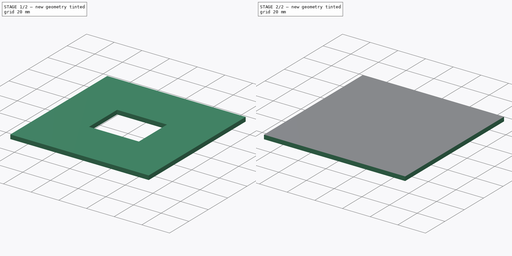
[diagram: build sequence overview — one tinted view per stage of 2, left to right]
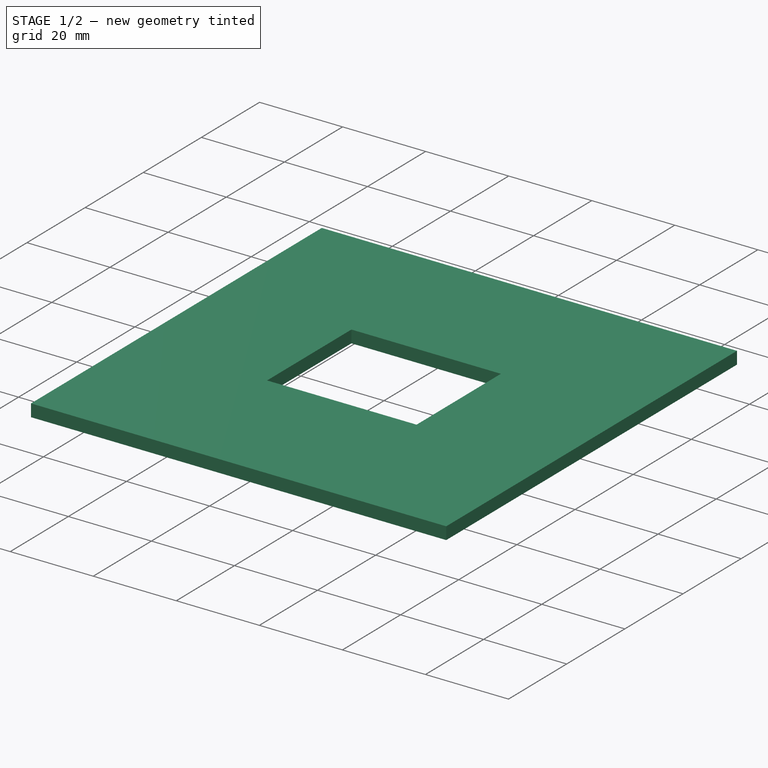
[diagram: stage 1 of 2 — iso view after this stage's code; geometry added in this stage tinted green]
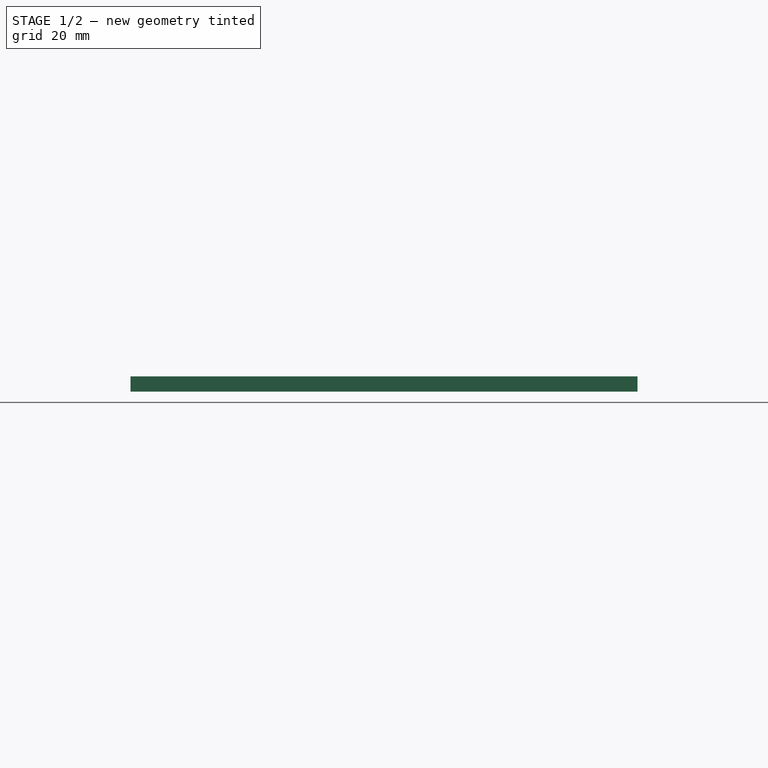
[diagram: stage 1 of 2 — front view after this stage's code; geometry added in this stage tinted green]
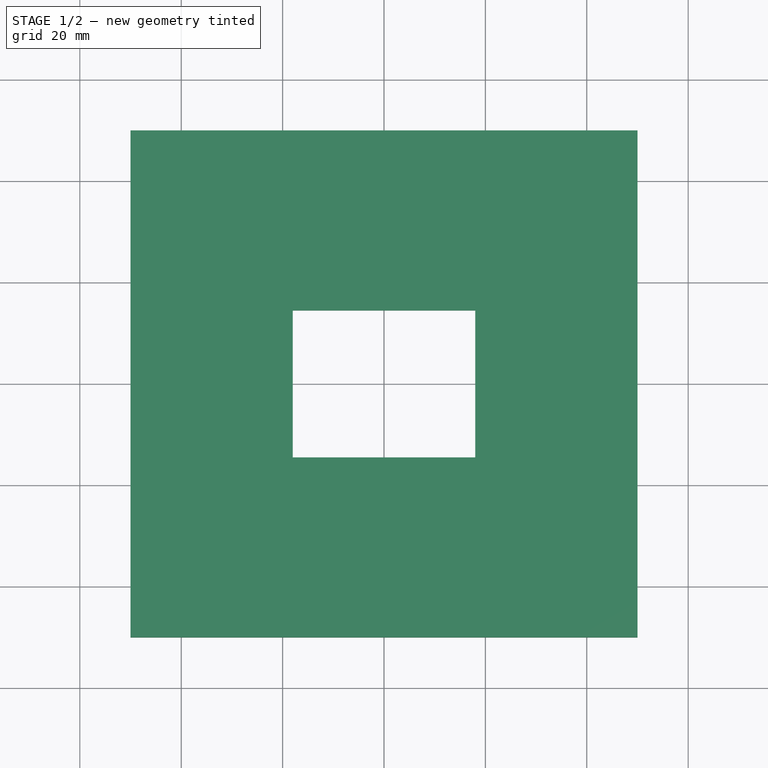
[diagram: stage 1 of 2 — top view after this stage's code; geometry added in this stage tinted green]
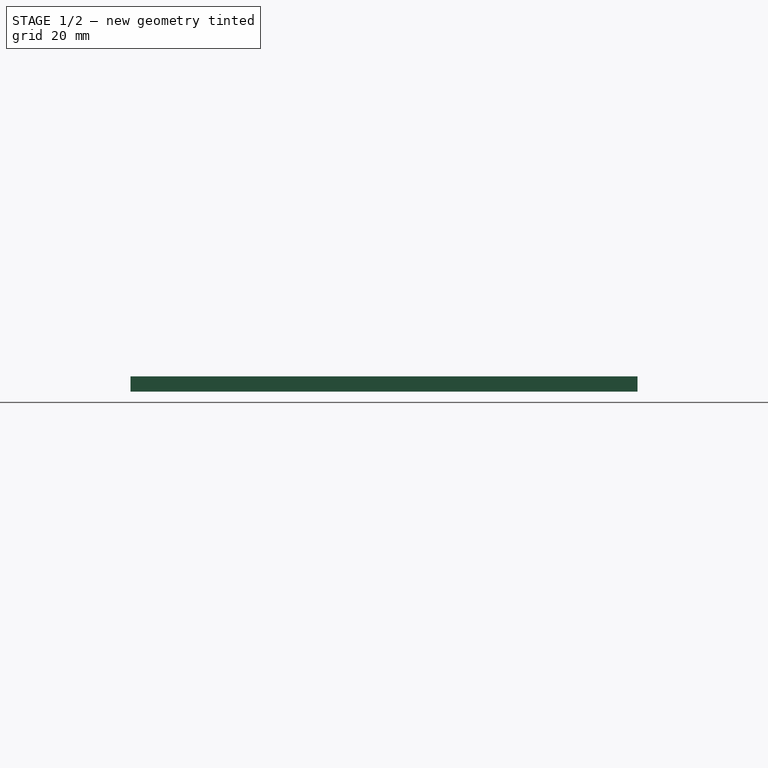
[diagram: stage 1 of 2 — right view after this stage's code; geometry added in this stage tinted green]
FCSTD DOCUMENT  (FreeCAD 0.18.3R)
Label: agujeroParaPantalla
License: All rights reserved
LicenseURL: http://en.wikipedia.org/wiki/All_rights_reserved
objects: Path::FeaturePython×3, Sketcher::SketchObject×2, Part::FeaturePython×2, PartDesign::Pad×1, PartDesign::Pocket×1, PartDesign::Body×1, App::FeaturePython×1, App::DocumentObjectGroup×1, Path::FeatureCompoundPython×1
note: 10 computed .brp shape members not serialized (recipe doc carries the construction recipe); baked Part::Feature solids carry a one-line shape summary decoded from their .brp

FEATURE [Sketcher::SketchObject] Sketch
  MapMode = 5
  Support = -> [XY_Plane]
  sketch-geometry (4):
    g0: LineSegment StartX=-50 StartY=50 StartZ=0 EndX=50 EndY=50 EndZ=0
    g1: LineSegment StartX=50 StartY=50 StartZ=0 EndX=50 EndY=-50 EndZ=0
    g2: LineSegment StartX=50 StartY=-50 StartZ=0 EndX=-50 EndY=-50 EndZ=0
    g3: LineSegment StartX=-50 StartY=-50 StartZ=0 EndX=-50 EndY=50 EndZ=0
  constraints (11):
    c: Coincident(g0,g1)
    c: Coincident(g1,g2)
    c: Coincident(g2,g3)
    c: Coincident(g3,g0)
    c: Horizontal(g0)
    c: Horizontal(g2)
    c: Vertical(g1)
    c: Vertical(g3)
    c: DistanceY(g3,g3) = 100
    c: DistanceX(g0,g0) = 100
    c: Symmetric(g1,g0,g-1)
FEATURE [PartDesign::Pad] Pad
  Length = 3
  Length2 = 100
  Profile = -> Sketch
  Refine = true
  Reversed = true
  Type = 0
FEATURE [Sketcher::SketchObject] Sketch001
  MapMode = 5
  Support = -> [Pad]
  sketch-geometry (4):
    g0: LineSegment StartX=-18 StartY=14.5 StartZ=0 EndX=18 EndY=14.5 EndZ=0
    g1: LineSegment StartX=18 StartY=14.5 StartZ=0 EndX=18 EndY=-14.5 EndZ=0
    g2: LineSegment StartX=18 StartY=-14.5 StartZ=0 EndX=-18 EndY=-14.5 EndZ=0
    g3: LineSegment StartX=-18 StartY=-14.5 StartZ=0 EndX=-18 EndY=14.5 EndZ=0
  constraints (11):
    c: Coincident(g0,g1)
    c: Coincident(g1,g2)
    c: Coincident(g2,g3)
    c: Coincident(g3,g0)
    c: Horizontal(g0)
    c: Horizontal(g2)
    c: Vertical(g1)
    c: Vertical(g3)
    c: Symmetric(g0,g1,g-1)
    c: DistanceY(g1,g1) = 29
    c: DistanceX(g0,g0) = 36
FEATURE [PartDesign::Pocket] Pocket
  BaseFeature = -> Pad
  Length = 5
  Length2 = 100
  Profile = -> Sketch001
  Refine = true
  Type = 1
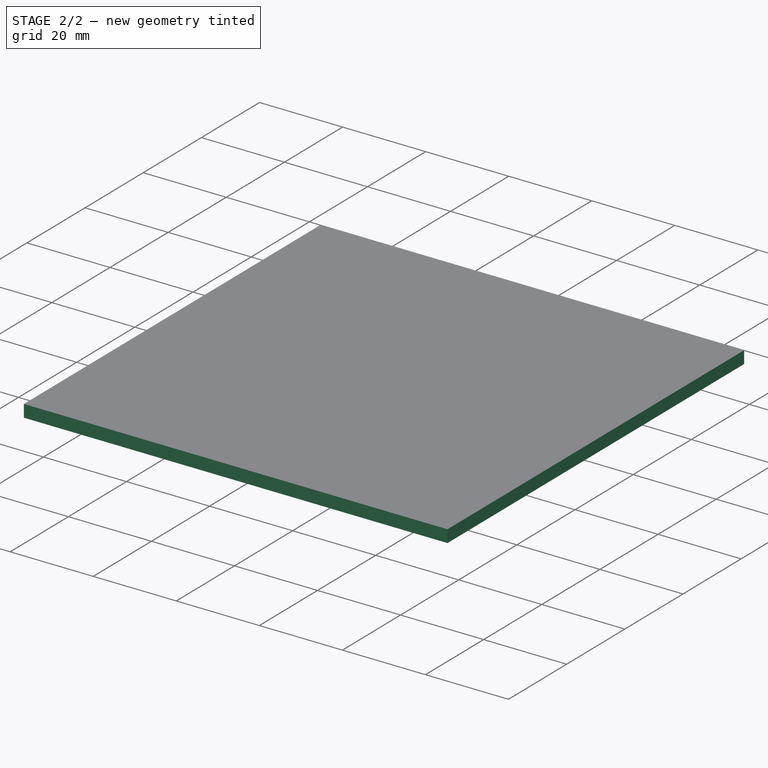
[diagram: stage 2 of 2 — iso view after this stage's code; geometry added in this stage tinted green]
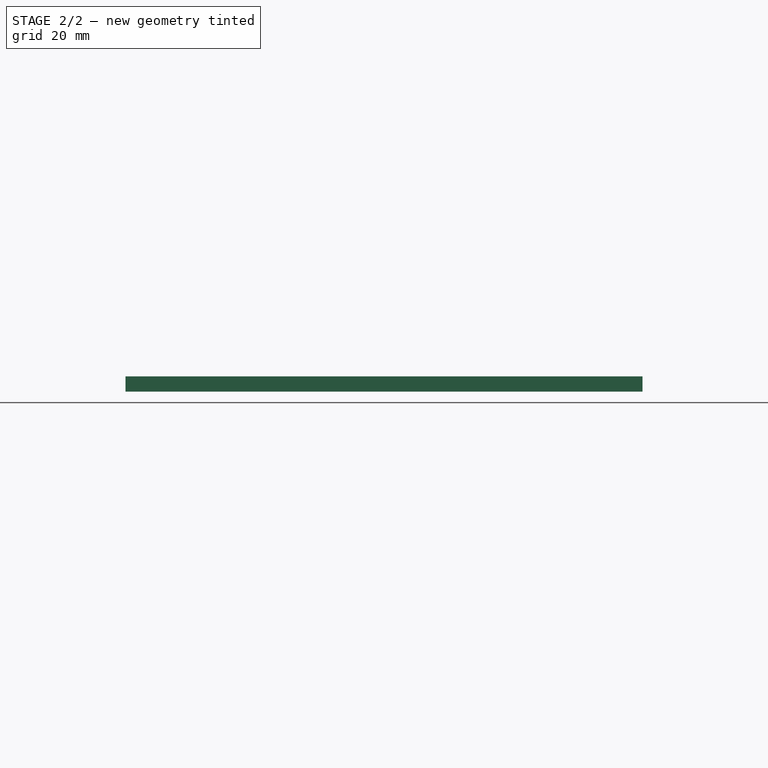
[diagram: stage 2 of 2 — front view after this stage's code; geometry added in this stage tinted green]
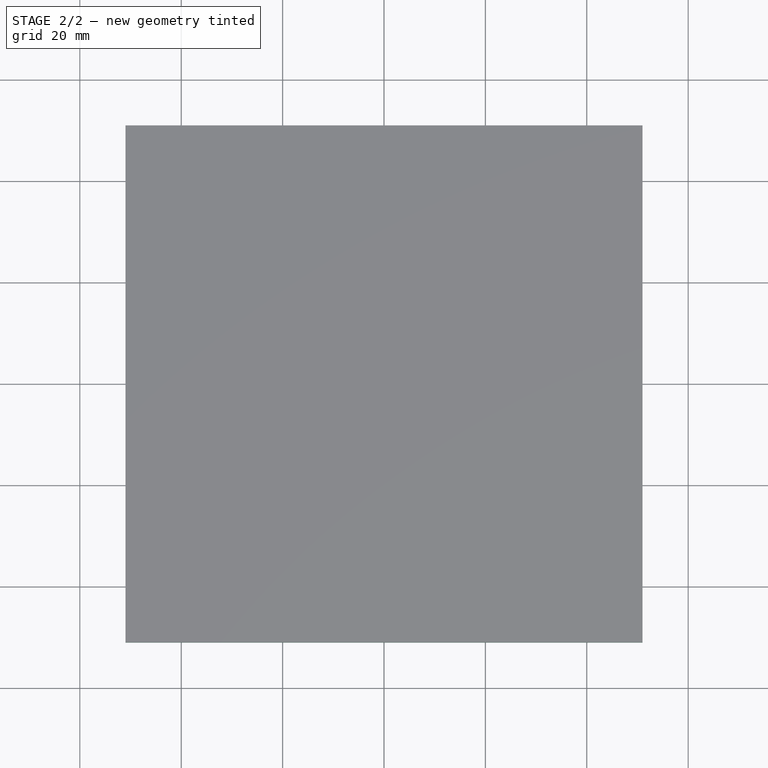
[diagram: stage 2 of 2 — top view after this stage's code; geometry added in this stage tinted green]
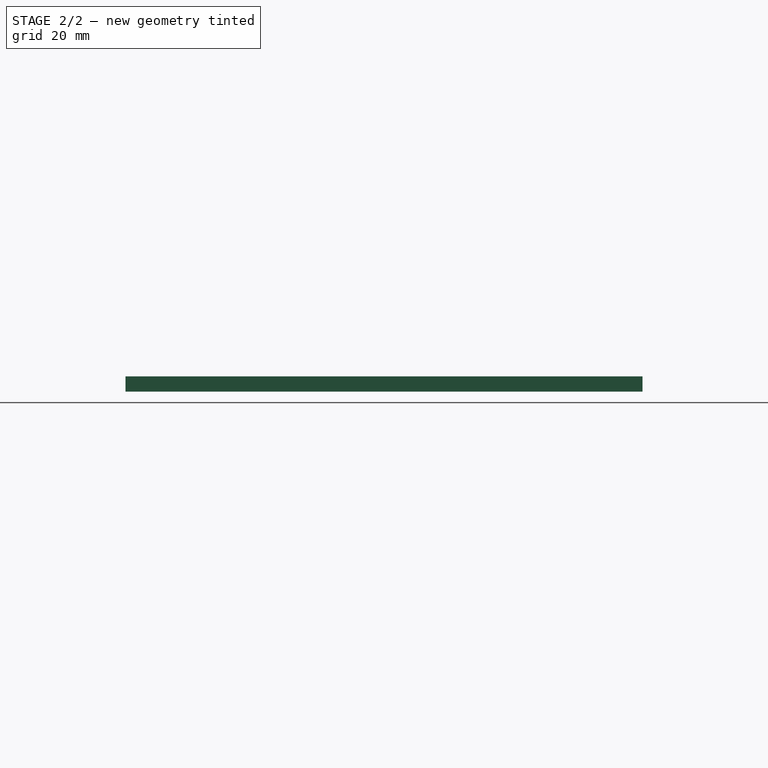
[diagram: stage 2 of 2 — right view after this stage's code; geometry added in this stage tinted green]
FEATURE [PartDesign::Body] Body
  Group = -> [Sketch,Pad,Sketch001,Pocket]
  Origin = -> Origin
  Tip = -> Pocket
FEATURE [App::FeaturePython] SetupSheet  # Path/CAM operation (typed FeaturePython)
  ClearanceHeightExpression = OpStockZMax+SetupSheet.ClearanceHeightOffset
  ClearanceHeightOffset = 3
  FinalDepthExpression = -3
  HorizRapid = 4
  SafeHeightExpression = OpStockZMax+SetupSheet.SafeHeightOffset
  SafeHeightOffset = 3
  StartDepthExpression = 0
  StepDownExpression = 1
  VertRapid = 2
FEATURE [Part::FeaturePython] Clone  label="Model-Body"  # Draft clone (typed FeaturePython)
  AttacherType = Attacher::AttachEngine3D
  Fuse = false
  Objects = -> [Body]
  PathResource = Model
  Scale = (1,1,1)
FEATURE [App::DocumentObjectGroup] Model
  Group = -> [Clone]
FEATURE [Path::FeaturePython] Default_Tool  label="Vcarved"  # Path/CAM operation (typed FeaturePython)
  HorizFeed = 3
  HorizRapid = 4
  SpindleDir = 0
  SpindleSpeed = 0
  ToolNumber = 1
  VertFeed = 0.5
  VertRapid = 2
  expr: HorizRapid = SetupSheet.HorizRapid
  expr: VertRapid = SetupSheet.VertRapid
FEATURE [Part::FeaturePython] Stock  # WARN: FeaturePython — macro-defined, semantics opaque (R4)
  Base = -> Model
  ExtXneg = 1
  ExtXpos = 1
  ExtYneg = 1
  ExtYpos = 1
  ExtZneg = 0
  ExtZpos = 0
  Placement = pos=(-50,-50,-3) rot=(0,0,1;0rad)
  StockType = FromBase
FEATURE [Path::FeaturePython] Profile_Edges  # Path/CAM operation (typed FeaturePython)
  Active = true
  AreaParams:
    Tolerance = 1e-07
    FitArcs = True
    Simplify = False
    CleanDistance = 0.0
    Accuracy = 0.01
    Unit = 1.0
    MinArcPoints = 4
    MaxArcPoints = 100
    ClipperScale = 10000000.0
    Fill = 0
    Coplanar = 0
    Reorient = True
    Outline = False
    Explode = False
    OpenMode = 0
    Deflection = 0.01
    SubjectFill = 0
    ClipFill = 0
    Offset = -1.5
    ExtraPass = 0
    Stepover = 0.0
    LastStepover = 0.0
    JoinType = 0
    EndType = 0
    MiterLimit = 2.0
    RoundPrecision = 0.0
    PocketMode = 0
    ToolRadius = 1.0
    PocketExtraOffset = 0.0
    PocketStepover = 0.0
    PocketLastStepover = 0.0
    FromCenter = False
    Angle = 45.0
    AngleShift = 0.0
    Shift = 0.0
    Thicken = False
    SectionCount = -1
    Stepdown = 1.0
    SectionOffset = 0.0
    SectionTolerance = 1e-06
    SectionMode = 2
    Project = False
  Base = -> [Clone]
  ClearanceHeight = 3
  Direction = 0
  FinalDepth = -3
  JoinType = 0
  MiterLimit = 0.1
  OffsetExtra = 0
  OpFinalDepth = 0
  OpStartDepth = 1
  OpStockZMax = 0
  OpStockZMin = -3
  OpToolDiameter = 3
  PathParams = {'orientation': 1, 'feedrate': 3.0, 'feedrate_v': 0.5, 'verbose': True, 'resume_height': 3.0, 'retraction': 3.0, 'return_end': True, 'preamble': False}
  SafeHeight = 3
  Side = 1
  StartDepth = 0
  StartPoint = (0,0,0)
  StepDown = 1
  ToolController = -> Default_Tool
  UseComp = true
  UseStartPoint = false
  expr: ClearanceHeight = OpStockZMax + SetupSheet.ClearanceHeightOffset
  expr: SafeHeight = OpStockZMax + SetupSheet.SafeHeightOffset
  expr: StepDown = 1
  expr: FinalDepth = -3
  expr: StartDepth = 0
FEATURE [Path::FeatureCompoundPython] Operations  # Path/CAM operation (typed FeaturePython)
  Group = -> [Profile_Edges]
  UsePlacements = false
FEATURE [Path::FeaturePython] Job  # Path/CAM operation (typed FeaturePython)
  GeometryTolerance = 0.01
  Model = -> Model
  Operations = -> Operations
  PostProcessor = 1
  SetupSheet = -> SetupSheet
  Stock = -> Stock
  ToolController = -> [Default_Tool]
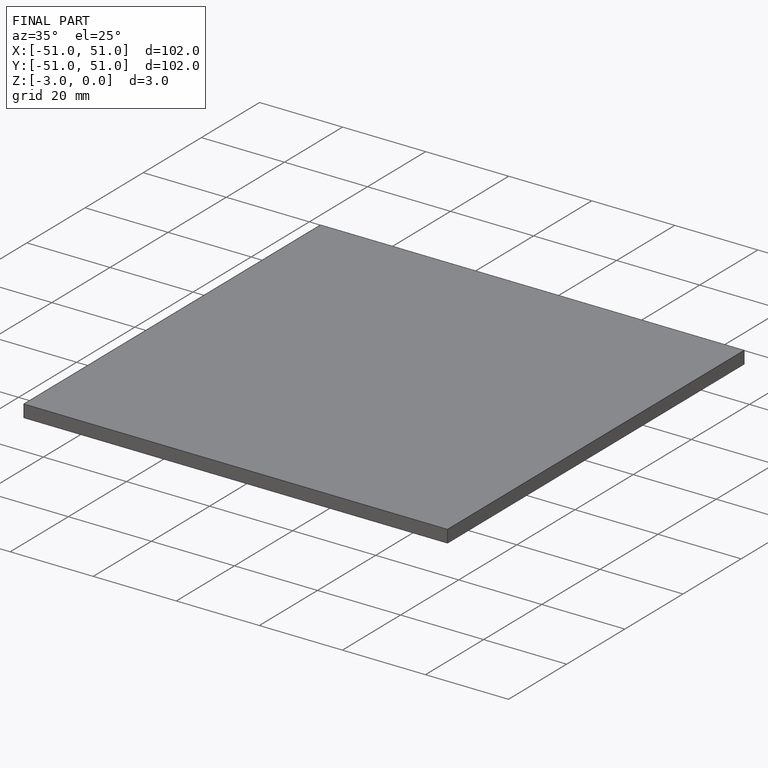
[diagram: finished part — iso view with bounding-box wireframe]
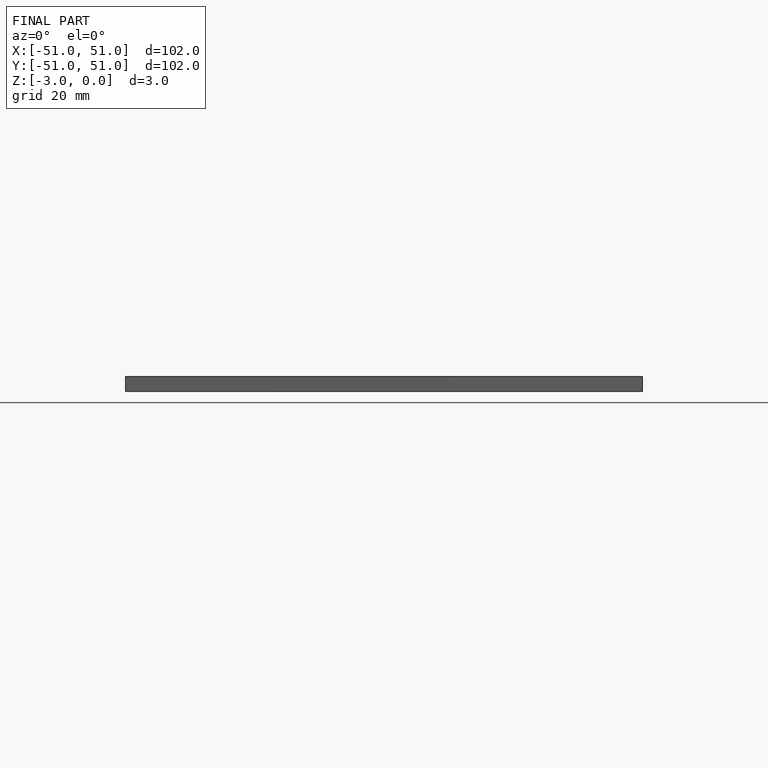
[diagram: finished part — front view with bounding-box wireframe]
